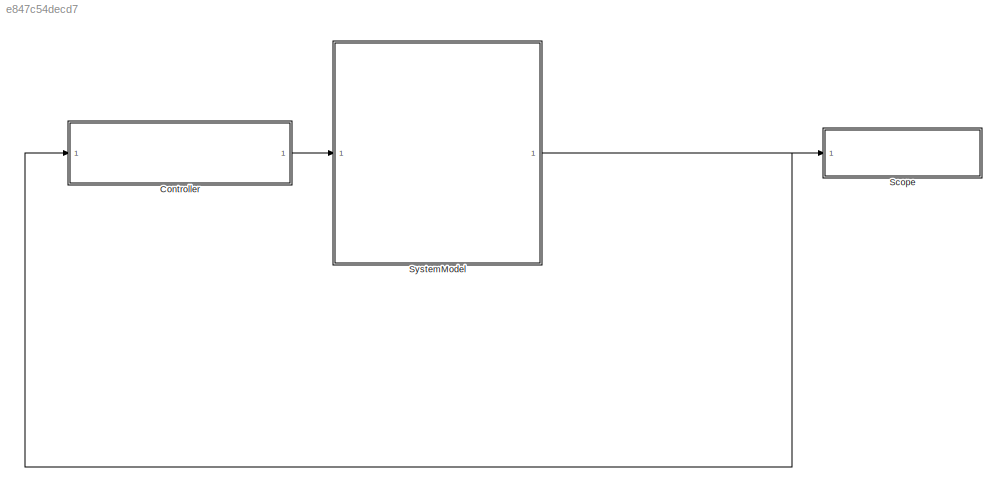
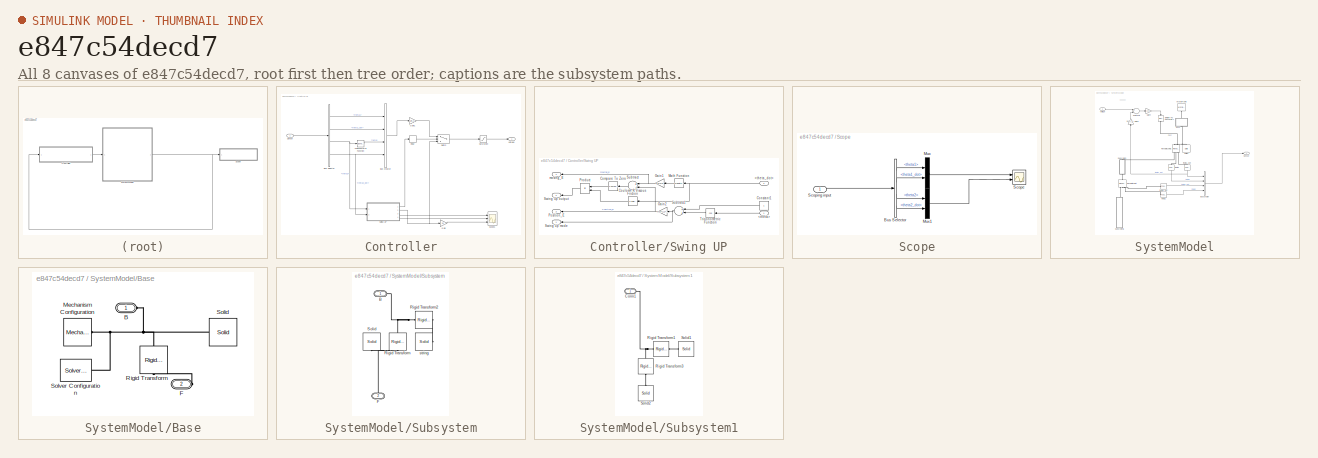
[diagram: thumbnail index - all 8 canvases of the model, root first then tree order]
MODEL slx_e847c54decd7
KIND model
CONFIG AbsTol = auto
CONFIG EnableMultiTasking = off
CONFIG FixedStep = auto
CONFIG MaxStep = 1e-3
CONFIG MinStep = 1e-5
CONFIG RelTol = 1e-3
CONFIG SampleTimeConstraint = Unconstrained
CONFIG Solver = VariableStepAuto
CONFIG SolverName = VariableStepAuto
CONFIG StartTime = 0.0
CONFIG StopTime = 5
BLOCK [SubSystem] Controller
  Ports = [1, 1]
  RequestExecContextInheritance = off
  Variant = off
BLOCK [BusCreator] Controller/Bus Creator
  DisplayOption = bar
  InheritFromInputs = on
  Inputs = 4
  Ports = [4, 1]
BLOCK [BusSelector] Controller/Bus Selector
  OutputAsBus = off
  OutputSignals = theta1,theta1_dot,theta2,theta2_dot
  Ports = [1, 4]
BLOCK [Gain] Controller/Gain
  Gain = 30
  OutDataTypeStr = Inherit: Inherit via internal rule
  ParamDataTypeStr = Inherit: Inherit via internal rule
  SaturateOnIntegerOverflow = off
BLOCK [Gain] Controller/Gain1
  Gain = LQR_K
  Multiplication = Matrix(K*u)
  OutDataTypeStr = Inherit: Inherit via internal rule
  ParamDataTypeStr = Inherit: Inherit via internal rule
  SaturateOnIntegerOverflow = off
BLOCK [Relay] Controller/Relay
  InputProcessing = Elements as channels (sample based)
  OffSwitchValue = 1.5
  OnSwitchValue = 1.95
BLOCK [Saturate] Controller/Saturation
  InputPortMap = u0
  LowerLimit = -10
  Ports = [1, 1]
  UpperLimit = 10
BLOCK [Scope] Controller/Scope1
  NumInputPorts = 3
  Ports = [3]
  ScopeSpecificationString = Simulink.scopes.TimeScopeBlockCfg('CurrentConfiguration', extmgr.ConfigurationSet(extmgr.Configuration('Core','General UI',true),extmgr.Configuration('Core','Source UI',true),extmgr.Configuration('Sources','WiredSimulink',true,'DataLoggingVariableName','ScopeData2'),extmgr.Configuration('Visuals','Time Domain',true,'SerializedDisplays',{struct('MinYLimReal','-75.34065','MaxYLimReal','243.06588','Y...<+1822ch>
BLOCK [Inport] Controller/Sensor
  IconDisplay = Port number
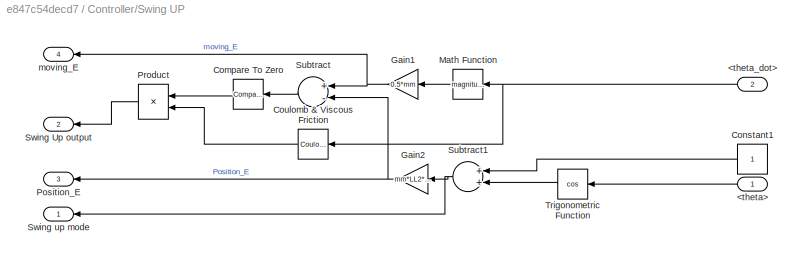
BLOCK [SubSystem] Controller/Swing UP
  Ports = [2, 4]
  RequestExecContextInheritance = off
  Variant = off
BLOCK [Inport] Controller/Swing UP/<theta>
  IconDisplay = Port number
BLOCK [Inport] Controller/Swing UP/<theta_dot>
  IconDisplay = Port number
  Port = 2
BLOCK [Reference] Controller/Swing UP/Compare To Zero  REF=simulink/Logic and Bit
Operations/Compare
To Zero
  Ports = [1, 1]
  SourceBlock = simulink/Logic and Bit\nOperations/Compare\nTo Zero
  SourceProductBaseCode = SL
  SourceProductName = Simulink
  SourceType = Compare To Zero
BLOCK [Constant] Controller/Swing UP/Constant1
BLOCK [Reference] Controller/Swing UP/Coulomb & Viscous Friction  REF=simulink/Discontinuities/Coulomb &
Viscous Friction
  Ports = [1, 1]
  SourceBlock = simulink/Discontinuities/Coulomb &\nViscous Friction
  SourceProductBaseCode = SL
  SourceProductName = Simulink
  SourceType = Coulombic and Viscous Friction
BLOCK [Gain] Controller/Swing UP/Gain1
  Gain = 0.5*mm
  OutDataTypeStr = Inherit: Inherit via internal rule
  ParamDataTypeStr = Inherit: Inherit via internal rule
  SaturateOnIntegerOverflow = off
BLOCK [Gain] Controller/Swing UP/Gain2
  Gain = mm*LL2*10
  OutDataTypeStr = Inherit: Inherit via internal rule
  ParamDataTypeStr = Inherit: Inherit via internal rule
  SaturateOnIntegerOverflow = off
BLOCK [Math] Controller/Swing UP/Math Function
  Operator = magnitude^2
  Ports = [1, 1]
BLOCK [Outport] Controller/Swing UP/Position_E
  IconDisplay = Port number
  Port = 3
BLOCK [Product] Controller/Swing UP/Product
  InputSameDT = off
  OutDataTypeStr = Inherit: Inherit via internal rule
  Ports = [2, 1]
  RndMeth = Floor
  SaturateOnIntegerOverflow = off
BLOCK [Sum] Controller/Swing UP/Subtract
  InputSameDT = off
  Inputs = +-
  OutDataTypeStr = Inherit: Inherit via internal rule
  Ports = [2, 1]
  SaturateOnIntegerOverflow = off
BLOCK [Sum] Controller/Swing UP/Subtract1
  InputSameDT = off
  OutDataTypeStr = Inherit: Inherit via internal rule
  Ports = [2, 1]
  SaturateOnIntegerOverflow = off
BLOCK [Outport] Controller/Swing UP/Swing Up output
  IconDisplay = Port number
  Port = 2
BLOCK [Outport] Controller/Swing UP/Swing up mode
  IconDisplay = Port number
BLOCK [Trigonometry] Controller/Swing UP/Trigonometric Function
  Operator = cos
  Ports = [1, 1]
BLOCK [Outport] Controller/Swing UP/moving_E
  IconDisplay = Port number
  Port = 4
BLOCK [Switch] Controller/Switch
  Criteria = u2 ~= 0
  InputSameDT = off
  SaturateOnIntegerOverflow = off
BLOCK [Trigonometry] Controller/Trigonometric Function
  Ports = [1, 1]
BLOCK [Outport] Controller/Voltage
  IconDisplay = Port number
BLOCK [SubSystem] Scope
  Ports = [1]
  RequestExecContextInheritance = off
  Variant = off
BLOCK [BusSelector] Scope/Bus Selector
  OutputAsBus = off
  OutputSignals = theta1,theta1_dot,theta2,theta2_dot
  Ports = [1, 4]
BLOCK [Mux] Scope/Mux
  DisplayOption = bar
  Inputs = 2
  Ports = [2, 1]
BLOCK [Mux] Scope/Mux1
  DisplayOption = bar
  Inputs = 2
  Ports = [2, 1]
BLOCK [Scope] Scope/Scope
  NumInputPorts = 2
  Ports = [2]
  ScopeSpecificationString = Simulink.scopes.TimeScopeBlockCfg('CurrentConfiguration', extmgr.ConfigurationSet(extmgr.Configuration('Core','General UI',true),extmgr.Configuration('Core','Source UI',true),extmgr.Configuration('Sources','WiredSimulink',true),extmgr.Configuration('Visuals','Time Domain',true,'SerializedDisplays',{struct('MinYLimReal','-4.72316','MaxYLimReal','6.42246','YLabelReal','','MinYLimMag','0.00000','MaxY...<+2198ch>
BLOCK [Inport] Scope/Scoping input
  IconDisplay = Port number
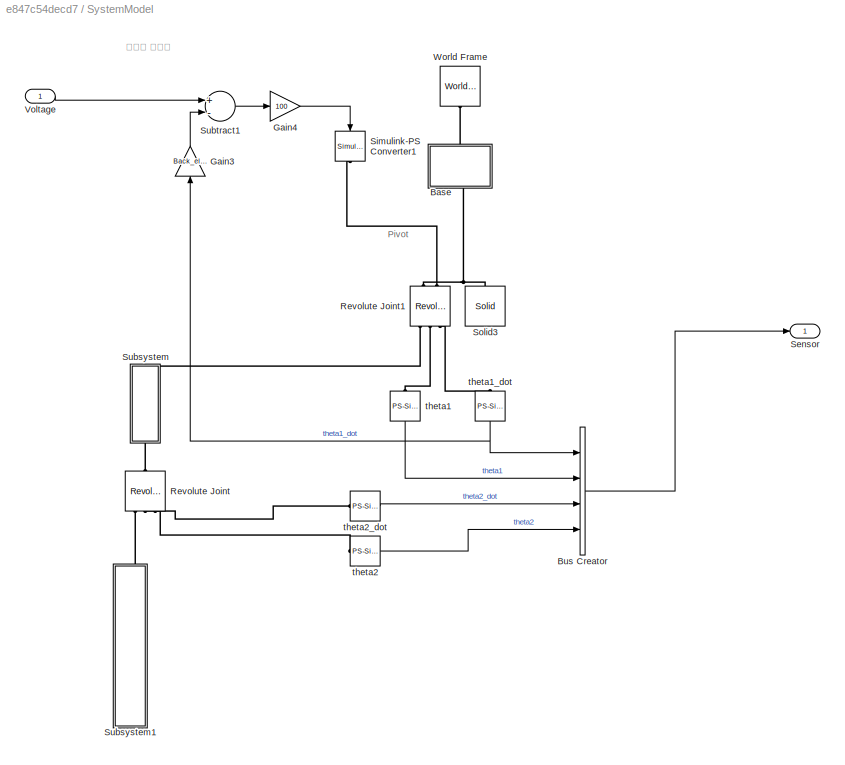
BLOCK [SubSystem] SystemModel
  Ports = [1, 1]
  RequestExecContextInheritance = off
  Variant = off
BLOCK [SubSystem] SystemModel/Base
  Ports = [0, 0, 0, 0, 0, 1, 1]
  RequestExecContextInheritance = off
  Variant = off
BLOCK [PMIOPort] SystemModel/Base/B
  Port = 1
  Side = Left
BLOCK [PMIOPort] SystemModel/Base/F
  Port = 2
  Side = Right
BLOCK [Reference] SystemModel/Base/Mechanism Configuration  REF=sm_lib/Utilities/Mechanism
Configuration
  Ports = [0, 0, 0, 0, 0, 0, 1]
  SourceBlock = sm_lib/Utilities/Mechanism\nConfiguration
  SourceProductBaseCode = MS
  SourceProductName = Simscape Multibody
  SourceType = Mechanism\nConfiguration
BLOCK [Reference] SystemModel/Base/Rigid Transform  REF=sm_lib/Frames and
Transforms/Rigid
Transform
  Ports = [0, 0, 0, 0, 0, 1, 1]
  SourceBlock = sm_lib/Frames and\nTransforms/Rigid\nTransform
  SourceProductBaseCode = MS
  SourceProductName = Simscape Multibody
  SourceType = Rigid\nTransform
BLOCK [Reference] SystemModel/Base/Solid  REF=sm_lib/Body Elements/Solid
  Ports = [0, 0, 0, 0, 0, 0, 1]
  SourceBlock = sm_lib/Body Elements/Solid
  SourceProductBaseCode = MS
  SourceProductName = Simscape Multibody
  SourceType = Solid
BLOCK [Reference] SystemModel/Base/Solver Configuration  REF=nesl_utility/Solver
Configuration
  Ports = [0, 0, 0, 0, 0, 0, 1]
  SourceBlock = nesl_utility/Solver\nConfiguration
  SourceProductBaseCode = SS
  SourceProductName = Simscape
  SourceType = Solver\nConfiguration
BLOCK [BusCreator] SystemModel/Bus Creator
  DisplayOption = bar
  InheritFromInputs = on
  Inputs = 4
  Ports = [4, 1]
BLOCK [Gain] SystemModel/Gain3
  Gain = Back_electro_force
  OutDataTypeStr = Inherit: Inherit via internal rule
  ParamDataTypeStr = Inherit: Inherit via internal rule
  SaturateOnIntegerOverflow = off
BLOCK [Gain] SystemModel/Gain4
  Gain = 100
  OutDataTypeStr = Inherit: Inherit via internal rule
  ParamDataTypeStr = Inherit: Inherit via internal rule
  SaturateOnIntegerOverflow = off
BLOCK [Reference] SystemModel/Revolute Joint  REF=sm_lib/Joints/Revolute Joint
  Ports = [0, 0, 0, 0, 0, 1, 3]
  SourceBlock = sm_lib/Joints/Revolute Joint
  SourceProductBaseCode = MS
  SourceProductName = Simscape Multibody
  SourceType = Revolute Joint
BLOCK [Reference] SystemModel/Revolute Joint1  REF=sm_lib/Joints/Revolute Joint
  Ports = [0, 0, 0, 0, 0, 2, 3]
  SourceBlock = sm_lib/Joints/Revolute Joint
  SourceProductBaseCode = MS
  SourceProductName = Simscape Multibody
  SourceType = Revolute Joint
BLOCK [Outport] SystemModel/Sensor
  IconDisplay = Port number
BLOCK [Reference] SystemModel/Simulink-PS Converter1  REF=nesl_utility/Simulink-PS
Converter
  Ports = [1, 0, 0, 0, 0, 0, 1]
  SourceBlock = nesl_utility/Simulink-PS\nConverter
  SourceProductBaseCode = SS
  SourceProductName = Simscape
  SourceType = Simulink-PS\nConverter
BLOCK [Reference] SystemModel/Solid3  REF=sm_lib/Body Elements/Solid
  Ports = [0, 0, 0, 0, 0, 0, 1]
  SourceBlock = sm_lib/Body Elements/Solid
  SourceProductBaseCode = MS
  SourceProductName = Simscape Multibody
  SourceType = Solid
BLOCK [SubSystem] SystemModel/Subsystem
  Ports = [0, 0, 0, 0, 0, 1, 1]
  RequestExecContextInheritance = off
  Variant = off
BLOCK [PMIOPort] SystemModel/Subsystem/B
  Port = 1
  Side = Left
BLOCK [PMIOPort] SystemModel/Subsystem/F
  Port = 2
  Side = Right
BLOCK [Reference] SystemModel/Subsystem/Rigid Transform  REF=sm_lib/Frames and
Transforms/Rigid
Transform
  Ports = [0, 0, 0, 0, 0, 1, 1]
  SourceBlock = sm_lib/Frames and\nTransforms/Rigid\nTransform
  SourceProductBaseCode = MS
  SourceProductName = Simscape Multibody
  SourceType = Rigid\nTransform
BLOCK [Reference] SystemModel/Subsystem/Rigid Transform2  REF=sm_lib/Frames and
Transforms/Rigid
Transform
  Ports = [0, 0, 0, 0, 0, 1, 1]
  SourceBlock = sm_lib/Frames and\nTransforms/Rigid\nTransform
  SourceProductBaseCode = MS
  SourceProductName = Simscape Multibody
  SourceType = Rigid\nTransform
BLOCK [Reference] SystemModel/Subsystem/Solid  REF=sm_lib/Body Elements/Solid
  Ports = [0, 0, 0, 0, 0, 0, 1]
  SourceBlock = sm_lib/Body Elements/Solid
  SourceProductBaseCode = MS
  SourceProductName = Simscape Multibody
  SourceType = Solid
BLOCK [Reference] SystemModel/Subsystem/string  REF=sm_lib/Body Elements/Solid
  Ports = [0, 0, 0, 0, 0, 0, 1]
  SourceBlock = sm_lib/Body Elements/Solid
  SourceProductBaseCode = MS
  SourceProductName = Simscape Multibody
  SourceType = Solid
BLOCK [SubSystem] SystemModel/Subsystem1
  Ports = [0, 0, 0, 0, 0, 1]
  RequestExecContextInheritance = off
  Variant = off
BLOCK [PMIOPort] SystemModel/Subsystem1/Conn1
  Port = 1
  Side = Left
BLOCK [Reference] SystemModel/Subsystem1/Rigid Transform1  REF=sm_lib/Frames and
Transforms/Rigid
Transform
  Ports = [0, 0, 0, 0, 0, 1, 1]
  SourceBlock = sm_lib/Frames and\nTransforms/Rigid\nTransform
  SourceProductBaseCode = MS
  SourceProductName = Simscape Multibody
  SourceType = Rigid\nTransform
BLOCK [Reference] SystemModel/Subsystem1/Rigid Transform3  REF=sm_lib/Frames and
Transforms/Rigid
Transform
  Ports = [0, 0, 0, 0, 0, 1, 1]
  SourceBlock = sm_lib/Frames and\nTransforms/Rigid\nTransform
  SourceProductBaseCode = MS
  SourceProductName = Simscape Multibody
  SourceType = Rigid\nTransform
BLOCK [Reference] SystemModel/Subsystem1/Solid1  REF=sm_lib/Body Elements/Solid
  Ports = [0, 0, 0, 0, 0, 0, 1]
  SourceBlock = sm_lib/Body Elements/Solid
  SourceProductBaseCode = MS
  SourceProductName = Simscape Multibody
  SourceType = Solid
BLOCK [Reference] SystemModel/Subsystem1/Solid2  REF=sm_lib/Body Elements/Solid
  Ports = [0, 0, 0, 0, 0, 0, 1]
  SourceBlock = sm_lib/Body Elements/Solid
  SourceProductBaseCode = MS
  SourceProductName = Simscape Multibody
  SourceType = Solid
BLOCK [Sum] SystemModel/Subtract1
  InputSameDT = off
  Inputs = +-
  OutDataTypeStr = Inherit: Inherit via internal rule
  Ports = [2, 1]
  SaturateOnIntegerOverflow = off
BLOCK [Inport] SystemModel/Voltage
  IconDisplay = Port number
BLOCK [Reference] SystemModel/World Frame  REF=sm_lib/Frames and
Transforms/World Frame
  Ports = [0, 0, 0, 0, 0, 0, 1]
  SourceBlock = sm_lib/Frames and\nTransforms/World Frame
  SourceProductBaseCode = MS
  SourceProductName = Simscape Multibody
  SourceType = World Frame
BLOCK [Reference] SystemModel/theta1  REF=nesl_utility/PS-Simulink
Converter
  Ports = [0, 1, 0, 0, 0, 1]
  SourceBlock = nesl_utility/PS-Simulink\nConverter
  SourceProductBaseCode = SS
  SourceProductName = Simscape
  SourceType = PS-Simulink\nConverter
BLOCK [Reference] SystemModel/theta1_dot  REF=nesl_utility/PS-Simulink
Converter
  Ports = [0, 1, 0, 0, 0, 1]
  SourceBlock = nesl_utility/PS-Simulink\nConverter
  SourceProductBaseCode = SS
  SourceProductName = Simscape
  SourceType = PS-Simulink\nConverter
BLOCK [Reference] SystemModel/theta2  REF=nesl_utility/PS-Simulink
Converter
  Ports = [0, 1, 0, 0, 0, 1]
  SourceBlock = nesl_utility/PS-Simulink\nConverter
  SourceProductBaseCode = SS
  SourceProductName = Simscape
  SourceType = PS-Simulink\nConverter
BLOCK [Reference] SystemModel/theta2_dot  REF=nesl_utility/PS-Simulink
Converter
  Ports = [0, 1, 0, 0, 0, 1]
  SourceBlock = nesl_utility/PS-Simulink\nConverter
  SourceProductBaseCode = SS
  SourceProductName = Simscape
  SourceType = PS-Simulink\nConverter
ANNOTATION SystemModel: Pivot
ANNOTATION SystemModel: 모터의 모델링
LINE Controller/Bus Creator:1 -> Controller/Gain1:1
LINE Controller/Bus Selector:1 -> Controller/Bus Creator:1
LINE Controller/Bus Selector:2 -> Controller/Bus Creator:2
NET Controller/Bus Selector:3 -> Controller/Swing UP:1, Controller/Trigonometric Function:1
NET Controller/Bus Selector:4 -> Controller/Bus Creator:4, Controller/Swing UP:2
LINE Controller/Gain1:1 -> Controller/Switch:1
LINE Controller/Gain:1 -> Controller/Scope1:3
LINE Controller/Relay:1 -> Controller/Switch:2
LINE Controller/Saturation:1 -> Controller/Voltage:1
LINE Controller/Sensor:1 -> Controller/Bus Selector:1
LINE Controller/Swing UP/<theta>:1 -> Controller/Swing UP/Trigonometric Function:1
NET Controller/Swing UP/<theta_dot>:1 -> Controller/Swing UP/Coulomb & Viscous Friction:1, Controller/Swing UP/Math Function:1
LINE Controller/Swing UP/Compare To Zero:1 -> Controller/Swing UP/Product:1
LINE Controller/Swing UP/Constant1:1 -> Controller/Swing UP/Subtract1:1
LINE Controller/Swing UP/Coulomb & Viscous Friction:1 -> Controller/Swing UP/Product:2
NET Controller/Swing UP/Gain1:1 -> Controller/Swing UP/Subtract:1, Controller/Swing UP/moving_E:1
NET Controller/Swing UP/Gain2:1 -> Controller/Swing UP/Position_E:1, Controller/Swing UP/Subtract:2
LINE Controller/Swing UP/Math Function:1 -> Controller/Swing UP/Gain1:1
LINE Controller/Swing UP/Product:1 -> Controller/Swing UP/Swing Up output:1
NET Controller/Swing UP/Subtract1:1 -> Controller/Swing UP/Gain2:1, Controller/Swing UP/Swing up mode:1
LINE Controller/Swing UP/Subtract:1 -> Controller/Swing UP/Compare To Zero:1
LINE Controller/Swing UP/Trigonometric Function:1 -> Controller/Swing UP/Subtract1:2
LINE Controller/Swing UP:1 -> Controller/Relay:1
NET Controller/Swing UP:2 -> Controller/Gain:1, Controller/Switch:3
LINE Controller/Swing UP:3 -> Controller/Scope1:1
LINE Controller/Swing UP:4 -> Controller/Scope1:2
LINE Controller/Switch:1 -> Controller/Saturation:1
LINE Controller/Trigonometric Function:1 -> Controller/Bus Creator:3
LINE Controller:1 -> SystemModel:1
LINE Scope/Bus Selector:1 -> Scope/Mux:1
LINE Scope/Bus Selector:2 -> Scope/Mux:2
LINE Scope/Bus Selector:3 -> Scope/Mux1:1
LINE Scope/Bus Selector:4 -> Scope/Mux1:2
LINE Scope/Mux1:1 -> Scope/Scope:2
LINE Scope/Mux:1 -> Scope/Scope:1
LINE Scope/Scoping input:1 -> Scope/Bus Selector:1
LINE SystemModel/Bus Creator:1 -> SystemModel/Sensor:1
LINE SystemModel/Gain3:1 -> SystemModel/Subtract1:2
LINE SystemModel/Gain4:1 -> SystemModel/Simulink-PS Converter1:1
LINE SystemModel/Subtract1:1 -> SystemModel/Gain4:1
LINE SystemModel/Voltage:1 -> SystemModel/Subtract1:1
LINE SystemModel/theta1:1 -> SystemModel/Bus Creator:2
NET SystemModel/theta1_dot:1 -> SystemModel/Bus Creator:1, SystemModel/Gain3:1
LINE SystemModel/theta2:1 -> SystemModel/Bus Creator:4
LINE SystemModel/theta2_dot:1 -> SystemModel/Bus Creator:3
NET SystemModel:1 -> Controller:1, Scope:1
PNET net1: SystemModel/Base/B:RConn1 -- SystemModel/Base/Mechanism Configuration:RConn1 -- SystemModel/Base/Rigid Transform:LConn1 -- SystemModel/Base/Solid:RConn1 -- SystemModel/Base/Solver Configuration:RConn1
PLINE SystemModel/Base/F:RConn1 -- SystemModel/Base/Rigid Transform:RConn1
PLINE SystemModel/Base:LConn1 -- SystemModel/World Frame:RConn1
PNET net2: SystemModel/Base:RConn1 -- SystemModel/Revolute Joint1:LConn1 -- SystemModel/Solid3:RConn1
PLINE SystemModel/Revolute Joint1:LConn2 -- SystemModel/Simulink-PS Converter1:RConn1
PLINE SystemModel/Revolute Joint1:RConn1 -- SystemModel/Subsystem:LConn1
PLINE SystemModel/Revolute Joint1:RConn2 -- SystemModel/theta1:LConn1
PLINE SystemModel/Revolute Joint1:RConn3 -- SystemModel/theta1_dot:LConn1
PLINE SystemModel/Revolute Joint:LConn1 -- SystemModel/Subsystem:RConn1
PLINE SystemModel/Revolute Joint:RConn1 -- SystemModel/Subsystem1:LConn1
PLINE SystemModel/Revolute Joint:RConn2 -- SystemModel/theta2:LConn1
PLINE SystemModel/Revolute Joint:RConn3 -- SystemModel/theta2_dot:LConn1
PNET net3: SystemModel/Subsystem/B:RConn1 -- SystemModel/Subsystem/Rigid Transform2:LConn1 -- SystemModel/Subsystem/Rigid Transform:LConn1
PNET net4: SystemModel/Subsystem/F:RConn1 -- SystemModel/Subsystem/Rigid Transform:RConn1 -- SystemModel/Subsystem/Solid:RConn1
PLINE SystemModel/Subsystem/Rigid Transform2:RConn1 -- SystemModel/Subsystem/string:RConn1
PNET net5: SystemModel/Subsystem1/Conn1:RConn1 -- SystemModel/Subsystem1/Rigid Transform1:LConn1 -- SystemModel/Subsystem1/Rigid Transform3:LConn1
PLINE SystemModel/Subsystem1/Rigid Transform1:RConn1 -- SystemModel/Subsystem1/Solid1:RConn1
PLINE SystemModel/Subsystem1/Rigid Transform3:RConn1 -- SystemModel/Subsystem1/Solid2:RConn1
note: NET lines group one-source signal fan-out (src -> all destinations, sorted); 1:1 wires keep LINE; PNET lines group multi-terminal physical nets as a canonical sorted terminal list (undirected conserving connections); 2-terminal nets keep the pairwise PLINE form
